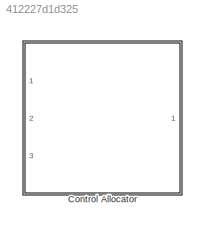
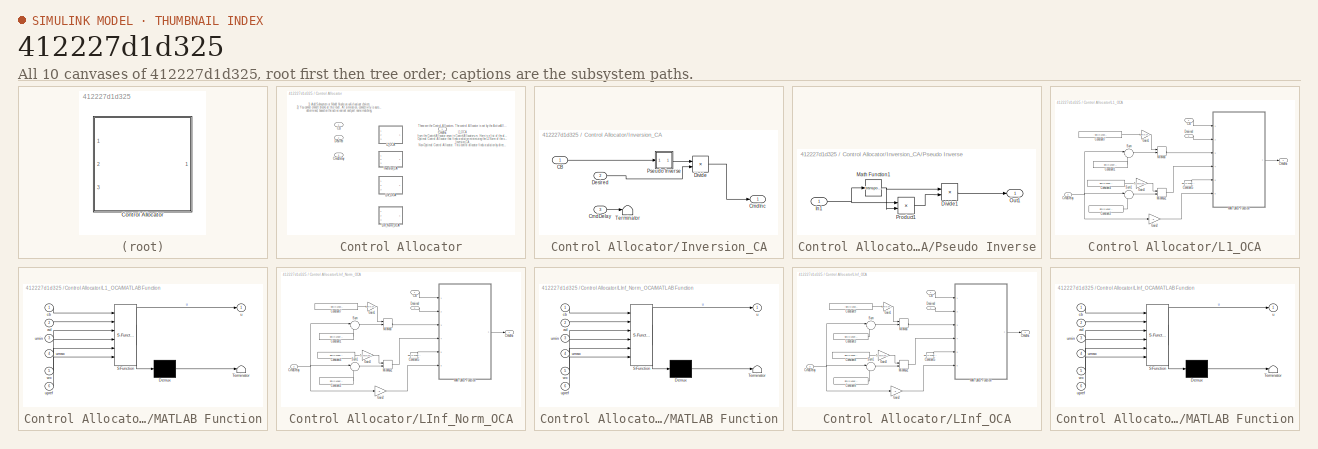
[diagram: thumbnail index - all 10 canvases of the model, root first then tree order]
MODEL slx_412227d1d325
KIND library
CONFIG AbsTol = auto
CONFIG FixedStep = auto
CONFIG MaxStep = auto
CONFIG MinStep = auto
CONFIG RelTol = 1e-3
CONFIG SampleTimeConstraint = Unconstrained
CONFIG Solver = VariableStepAuto
CONFIG SolverMode = Auto
CONFIG SolverName = VariableStepAuto
CONFIG StartTime = 0.0
CONFIG StopTime = 10.0
BLOCK [SubSystem] Control Allocator
  Ports = [3, 1]
  RequestExecContextInheritance = off
  Variant = on
BLOCK [Inport] Control Allocator/CB
  IconDisplay = Port number
BLOCK [Inport] Control Allocator/CmdDelay
  IconDisplay = Port number
  Port = 3
BLOCK [Outport] Control Allocator/CmdInc
  IconDisplay = Port number
BLOCK [Inport] Control Allocator/Desired
  IconDisplay = Port number
  Port = 2
BLOCK [SubSystem] Control Allocator/Inversion_CA
  Ports = [3, 1]
  RequestExecContextInheritance = off
  Variant = off
  VariantControl = ActiveAllocator==ControlAllocators.Inversion_CA
BLOCK [Inport] Control Allocator/Inversion_CA/CB
  IconDisplay = Port number
BLOCK [Inport] Control Allocator/Inversion_CA/CmdDelay
  IconDisplay = Port number
  Port = 3
BLOCK [Outport] Control Allocator/Inversion_CA/CmdInc
  IconDisplay = Port number
BLOCK [Inport] Control Allocator/Inversion_CA/Desired
  IconDisplay = Port number
  Port = 2
BLOCK [Product] Control Allocator/Inversion_CA/Divide
  InputSameDT = off
  Multiplication = Matrix(*)
  OutDataTypeStr = Inherit: Inherit via internal rule
  Ports = [2, 1]
  RndMeth = Floor
  SaturateOnIntegerOverflow = off
BLOCK [SubSystem] Control Allocator/Inversion_CA/Pseudo Inverse
  Ports = [1, 1]
  RequestExecContextInheritance = off
  Variant = off
BLOCK [Product] Control Allocator/Inversion_CA/Pseudo Inverse/Divide1
  InputSameDT = off
  Inputs = */
  Multiplication = Matrix(*)
  OutDataTypeStr = Inherit: Inherit via internal rule
  Ports = [2, 1]
  RndMeth = Floor
  SaturateOnIntegerOverflow = off
BLOCK [Inport] Control Allocator/Inversion_CA/Pseudo Inverse/In1
  IconDisplay = Port number
BLOCK [Math] Control Allocator/Inversion_CA/Pseudo Inverse/Math Function1
  Operator = transpose
  Ports = [1, 1]
BLOCK [Outport] Control Allocator/Inversion_CA/Pseudo Inverse/Out1
  IconDisplay = Port number
BLOCK [Product] Control Allocator/Inversion_CA/Pseudo Inverse/Product1
  InputSameDT = off
  Multiplication = Matrix(*)
  OutDataTypeStr = Inherit: Inherit via internal rule
  Ports = [2, 1]
  RndMeth = Floor
  SaturateOnIntegerOverflow = off
BLOCK [Terminator] Control Allocator/Inversion_CA/Terminator
BLOCK [SubSystem] Control Allocator/L1_OCA
  Ports = [3, 1]
  RequestExecContextInheritance = off
  Variant = off
  VariantControl = ActiveAllocator==ControlAllocators.L1_OCA
BLOCK [Inport] Control Allocator/L1_OCA/CB
  IconDisplay = Port number
BLOCK [Inport] Control Allocator/L1_OCA/CmdDelay
  IconDisplay = Port number
  Port = 3
BLOCK [Outport] Control Allocator/L1_OCA/CmdInc
  IconDisplay = Port number
BLOCK [Constant] Control Allocator/L1_OCA/Constant1
  Value = SimIn.Mixer.PosLim_lo
BLOCK [Constant] Control Allocator/L1_OCA/Constant2
  Value = SimIn.Mixer.PosLim_hi
BLOCK [Constant] Control Allocator/L1_OCA/Constant4
  Value = SimIn.Mixer.RateLim
BLOCK [Constant] Control Allocator/L1_OCA/Constant5
  Value = SimIn.Mixer.WeightC
BLOCK [Constant] Control Allocator/L1_OCA/Constant7
  Value = -SimIn.Mixer.RateLim
BLOCK [Inport] Control Allocator/L1_OCA/Desired
  IconDisplay = Port number
  Port = 2
BLOCK [Gain] Control Allocator/L1_OCA/Gain1
  Gain = SimIn.Modeling.SampleTime
  OutDataTypeStr = Inherit: Inherit via internal rule
  ParamDataTypeStr = Inherit: Inherit via internal rule
  SaturateOnIntegerOverflow = off
BLOCK [Gain] Control Allocator/L1_OCA/Gain2
  Gain = -1
  OutDataTypeStr = Inherit: Inherit via internal rule
  ParamDataTypeStr = Inherit: Inherit via internal rule
  SaturateOnIntegerOverflow = off
BLOCK [Gain] Control Allocator/L1_OCA/Gain3
  Gain = SimIn.Modeling.SampleTime
  OutDataTypeStr = Inherit: Inherit via internal rule
  ParamDataTypeStr = Inherit: Inherit via internal rule
  SaturateOnIntegerOverflow = off
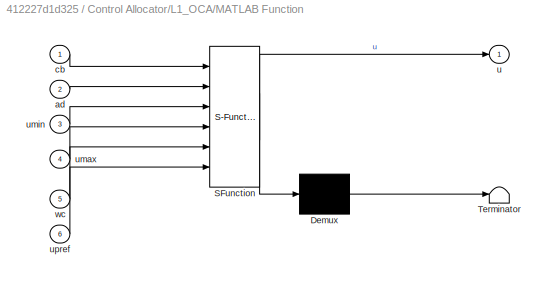
BLOCK [SubSystem] Control Allocator/L1_OCA/MATLAB Function
  ErrorFcn = Stateflow.Translate.translate
  PermitHierarchicalResolution = ExplicitOnly
  Ports = [6, 1]
  RequestExecContextInheritance = off
  SFBlockType = MATLAB Function
  TreatAsAtomicUnit = on
  Variant = off
BLOCK [Demux] Control Allocator/L1_OCA/MATLAB Function/ Demux 
  Outputs = 1
  Ports = [1, 1]
BLOCK [S-Function] Control Allocator/L1_OCA/MATLAB Function/ SFunction 
  EnableBusSupport = off
  FunctionName = sf_sfun
  PortCounts = [6 2]
  Ports = [6, 2]
  SFunctionDeploymentMode = off
  Tag = Stateflow S-Function ControlAllocator 4
BLOCK [Terminator] Control Allocator/L1_OCA/MATLAB Function/ Terminator 
BLOCK [Inport] Control Allocator/L1_OCA/MATLAB Function/ad
  IconDisplay = Port number
  Port = 2
BLOCK [Inport] Control Allocator/L1_OCA/MATLAB Function/cb
  IconDisplay = Port number
BLOCK [Outport] Control Allocator/L1_OCA/MATLAB Function/u
  IconDisplay = Port number
BLOCK [Inport] Control Allocator/L1_OCA/MATLAB Function/umax
  IconDisplay = Port number
  Port = 4
BLOCK [Inport] Control Allocator/L1_OCA/MATLAB Function/umin
  IconDisplay = Port number
  Port = 3
BLOCK [Inport] Control Allocator/L1_OCA/MATLAB Function/upref
  IconDisplay = Port number
  Port = 6
BLOCK [Inport] Control Allocator/L1_OCA/MATLAB Function/wc
  IconDisplay = Port number
  Port = 5
BLOCK [MinMax] Control Allocator/L1_OCA/MinMax
  Function = max
  InputSameDT = off
  Inputs = 2
  Ports = [2, 1]
  SaturateOnIntegerOverflow = off
BLOCK [MinMax] Control Allocator/L1_OCA/MinMax1
  InputSameDT = off
  Inputs = 2
  Ports = [2, 1]
  SaturateOnIntegerOverflow = off
BLOCK [Sum] Control Allocator/L1_OCA/Sum
  IconShape = round
  InputSameDT = off
  Inputs = |-+
  OutDataTypeStr = Inherit: Inherit via internal rule
  Ports = [2, 1]
  SaturateOnIntegerOverflow = off
BLOCK [Sum] Control Allocator/L1_OCA/Sum1
  IconShape = round
  InputSameDT = off
  Inputs = |-+
  OutDataTypeStr = Inherit: Inherit via internal rule
  Ports = [2, 1]
  SaturateOnIntegerOverflow = off
BLOCK [SubSystem] Control Allocator/LInf_Norm_OCA
  Ports = [3, 1]
  RequestExecContextInheritance = off
  Variant = off
  VariantControl = ActiveAllocator==ControlAllocators.LInf_Norm_OCA
BLOCK [Inport] Control Allocator/LInf_Norm_OCA/CB
  IconDisplay = Port number
BLOCK [Inport] Control Allocator/LInf_Norm_OCA/CmdDelay
  IconDisplay = Port number
  Port = 3
BLOCK [Outport] Control Allocator/LInf_Norm_OCA/CmdInc
  IconDisplay = Port number
BLOCK [Constant] Control Allocator/LInf_Norm_OCA/Constant1
  Value = SimIn.Mixer.PosLim_lo
BLOCK [Constant] Control Allocator/LInf_Norm_OCA/Constant2
  Value = SimIn.Mixer.PosLim_hi
BLOCK [Constant] Control Allocator/LInf_Norm_OCA/Constant4
  Value = SimIn.Mixer.RateLim
BLOCK [Constant] Control Allocator/LInf_Norm_OCA/Constant5
  Value = SimIn.Mixer.WeightC
BLOCK [Constant] Control Allocator/LInf_Norm_OCA/Constant7
  Value = -SimIn.Mixer.RateLim
BLOCK [Inport] Control Allocator/LInf_Norm_OCA/Desired
  IconDisplay = Port number
  Port = 2
BLOCK [Gain] Control Allocator/LInf_Norm_OCA/Gain1
  Gain = SimIn.Modeling.SampleTime
  OutDataTypeStr = Inherit: Inherit via internal rule
  ParamDataTypeStr = Inherit: Inherit via internal rule
  SaturateOnIntegerOverflow = off
BLOCK [Gain] Control Allocator/LInf_Norm_OCA/Gain2
  Gain = -1
  OutDataTypeStr = Inherit: Inherit via internal rule
  ParamDataTypeStr = Inherit: Inherit via internal rule
  SaturateOnIntegerOverflow = off
BLOCK [Gain] Control Allocator/LInf_Norm_OCA/Gain3
  Gain = SimIn.Modeling.SampleTime
  OutDataTypeStr = Inherit: Inherit via internal rule
  ParamDataTypeStr = Inherit: Inherit via internal rule
  SaturateOnIntegerOverflow = off
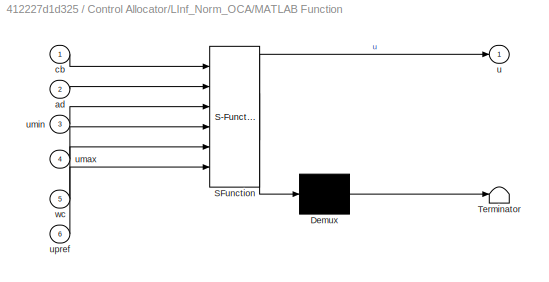
BLOCK [SubSystem] Control Allocator/LInf_Norm_OCA/MATLAB Function
  ErrorFcn = Stateflow.Translate.translate
  PermitHierarchicalResolution = ExplicitOnly
  Ports = [6, 1]
  RequestExecContextInheritance = off
  SFBlockType = MATLAB Function
  TreatAsAtomicUnit = on
  Variant = off
BLOCK [Demux] Control Allocator/LInf_Norm_OCA/MATLAB Function/ Demux 
  Outputs = 1
  Ports = [1, 1]
BLOCK [S-Function] Control Allocator/LInf_Norm_OCA/MATLAB Function/ SFunction 
  EnableBusSupport = off
  FunctionName = sf_sfun
  PortCounts = [6 2]
  Ports = [6, 2]
  SFunctionDeploymentMode = off
  Tag = Stateflow S-Function ControlAllocator 8
BLOCK [Terminator] Control Allocator/LInf_Norm_OCA/MATLAB Function/ Terminator 
BLOCK [Inport] Control Allocator/LInf_Norm_OCA/MATLAB Function/ad
  IconDisplay = Port number
  Port = 2
BLOCK [Inport] Control Allocator/LInf_Norm_OCA/MATLAB Function/cb
  IconDisplay = Port number
BLOCK [Outport] Control Allocator/LInf_Norm_OCA/MATLAB Function/u
  IconDisplay = Port number
BLOCK [Inport] Control Allocator/LInf_Norm_OCA/MATLAB Function/umax
  IconDisplay = Port number
  Port = 4
BLOCK [Inport] Control Allocator/LInf_Norm_OCA/MATLAB Function/umin
  IconDisplay = Port number
  Port = 3
BLOCK [Inport] Control Allocator/LInf_Norm_OCA/MATLAB Function/upref
  IconDisplay = Port number
  Port = 6
BLOCK [Inport] Control Allocator/LInf_Norm_OCA/MATLAB Function/wc
  IconDisplay = Port number
  Port = 5
BLOCK [MinMax] Control Allocator/LInf_Norm_OCA/MinMax
  Function = max
  InputSameDT = off
  Inputs = 2
  Ports = [2, 1]
  SaturateOnIntegerOverflow = off
BLOCK [MinMax] Control Allocator/LInf_Norm_OCA/MinMax1
  InputSameDT = off
  Inputs = 2
  Ports = [2, 1]
  SaturateOnIntegerOverflow = off
BLOCK [Sum] Control Allocator/LInf_Norm_OCA/Sum
  IconShape = round
  InputSameDT = off
  Inputs = |-+
  OutDataTypeStr = Inherit: Inherit via internal rule
  Ports = [2, 1]
  SaturateOnIntegerOverflow = off
BLOCK [Sum] Control Allocator/LInf_Norm_OCA/Sum1
  IconShape = round
  InputSameDT = off
  Inputs = |-+
  OutDataTypeStr = Inherit: Inherit via internal rule
  Ports = [2, 1]
  SaturateOnIntegerOverflow = off
BLOCK [SubSystem] Control Allocator/LInf_OCA
  Ports = [3, 1]
  RequestExecContextInheritance = off
  Variant = off
  VariantControl = ActiveAllocator==ControlAllocators.LInf_OCA
BLOCK [Inport] Control Allocator/LInf_OCA/CB
  IconDisplay = Port number
BLOCK [Inport] Control Allocator/LInf_OCA/CmdDelay
  IconDisplay = Port number
  Port = 3
BLOCK [Outport] Control Allocator/LInf_OCA/CmdInc
  IconDisplay = Port number
BLOCK [Constant] Control Allocator/LInf_OCA/Constant3
  Value = SimIn.Mixer.PosLim_lo
BLOCK [Constant] Control Allocator/LInf_OCA/Constant5
  Value = SimIn.Mixer.WeightC
BLOCK [Constant] Control Allocator/LInf_OCA/Constant6
  Value = SimIn.Mixer.PosLim_hi
BLOCK [Constant] Control Allocator/LInf_OCA/Constant8
  Value = SimIn.Mixer.RateLim
BLOCK [Constant] Control Allocator/LInf_OCA/Constant9
  Value = -SimIn.Mixer.RateLim
BLOCK [Inport] Control Allocator/LInf_OCA/Desired
  IconDisplay = Port number
  Port = 2
BLOCK [Gain] Control Allocator/LInf_OCA/Gain1
  Gain = SimIn.Modeling.SampleTime
  OutDataTypeStr = Inherit: Inherit via internal rule
  ParamDataTypeStr = Inherit: Inherit via internal rule
  SaturateOnIntegerOverflow = off
BLOCK [Gain] Control Allocator/LInf_OCA/Gain2
  Gain = -1
  OutDataTypeStr = Inherit: Inherit via internal rule
  ParamDataTypeStr = Inherit: Inherit via internal rule
  SaturateOnIntegerOverflow = off
BLOCK [Gain] Control Allocator/LInf_OCA/Gain3
  Gain = SimIn.Modeling.SampleTime
  OutDataTypeStr = Inherit: Inherit via internal rule
  ParamDataTypeStr = Inherit: Inherit via internal rule
  SaturateOnIntegerOverflow = off
BLOCK [SubSystem] Control Allocator/LInf_OCA/MATLAB Function
  ErrorFcn = Stateflow.Translate.translate
  PermitHierarchicalResolution = ExplicitOnly
  Ports = [6, 1]
  RequestExecContextInheritance = off
  SFBlockType = MATLAB Function
  TreatAsAtomicUnit = on
  Variant = off
BLOCK [Demux] Control Allocator/LInf_OCA/MATLAB Function/ Demux 
  Outputs = 1
  Ports = [1, 1]
BLOCK [S-Function] Control Allocator/LInf_OCA/MATLAB Function/ SFunction 
  EnableBusSupport = off
  FunctionName = sf_sfun
  PortCounts = [6 2]
  Ports = [6, 2]
  SFunctionDeploymentMode = off
  Tag = Stateflow S-Function ControlAllocator 3
BLOCK [Terminator] Control Allocator/LInf_OCA/MATLAB Function/ Terminator 
BLOCK [Inport] Control Allocator/LInf_OCA/MATLAB Function/ad
  IconDisplay = Port number
  Port = 2
BLOCK [Inport] Control Allocator/LInf_OCA/MATLAB Function/cb
  IconDisplay = Port number
BLOCK [Outport] Control Allocator/LInf_OCA/MATLAB Function/u
  IconDisplay = Port number
BLOCK [Inport] Control Allocator/LInf_OCA/MATLAB Function/umax
  IconDisplay = Port number
  Port = 4
BLOCK [Inport] Control Allocator/LInf_OCA/MATLAB Function/umin
  IconDisplay = Port number
  Port = 3
BLOCK [Inport] Control Allocator/LInf_OCA/MATLAB Function/upref
  IconDisplay = Port number
  Port = 6
BLOCK [Inport] Control Allocator/LInf_OCA/MATLAB Function/wc
  IconDisplay = Port number
  Port = 5
BLOCK [MinMax] Control Allocator/LInf_OCA/MinMax
  Function = max
  InputSameDT = off
  Inputs = 2
  Ports = [2, 1]
  SaturateOnIntegerOverflow = off
BLOCK [MinMax] Control Allocator/LInf_OCA/MinMax1
  InputSameDT = off
  Inputs = 2
  Ports = [2, 1]
  SaturateOnIntegerOverflow = off
BLOCK [Sum] Control Allocator/LInf_OCA/Sum
  IconShape = round
  InputSameDT = off
  Inputs = |-+
  OutDataTypeStr = Inherit: Inherit via internal rule
  Ports = [2, 1]
  SaturateOnIntegerOverflow = off
BLOCK [Sum] Control Allocator/LInf_OCA/Sum1
  IconShape = round
  InputSameDT = off
  Inputs = |-+
  OutDataTypeStr = Inherit: Inherit via internal rule
  Ports = [2, 1]
  SaturateOnIntegerOverflow = off
ANNOTATION Control Allocator: 1) Add Subsystem or Model blocks as valid variant choices. 2) You cannot connect blocks at this level. At simulation, connectivity is automatically determined, based on the active variant and port name matching.
ANNOTATION Control Allocator: These are the Control Allocators. The control Allocator is set by the ActiveAllocator variable from the ControlAllocator enum in ControlAllocators.m. Here is a list of the alloocators availible: L1_OCA Optimal Control Allocator that finds a solution minimizing the L1 Norm of the control deflection using the simplex method. This is the default Allocator. Inversion_CA Non-Optimal Control Allocator. ...<+456ch>
LINE Control Allocator/Inversion_CA/CB:1 -> Control Allocator/Inversion_CA/Pseudo Inverse:1
LINE Control Allocator/Inversion_CA/CmdDelay:1 -> Control Allocator/Inversion_CA/Terminator:1
LINE Control Allocator/Inversion_CA/Desired:1 -> Control Allocator/Inversion_CA/Divide:2
LINE Control Allocator/Inversion_CA/Divide:1 -> Control Allocator/Inversion_CA/CmdInc:1
LINE Control Allocator/Inversion_CA/Pseudo Inverse/Divide1:1 -> Control Allocator/Inversion_CA/Pseudo Inverse/Out1:1
NET Control Allocator/Inversion_CA/Pseudo Inverse/In1:1 -> Control Allocator/Inversion_CA/Pseudo Inverse/Math Function1:1, Control Allocator/Inversion_CA/Pseudo Inverse/Product1:1
NET Control Allocator/Inversion_CA/Pseudo Inverse/Math Function1:1 -> Control Allocator/Inversion_CA/Pseudo Inverse/Divide1:1, Control Allocator/Inversion_CA/Pseudo Inverse/Product1:2
LINE Control Allocator/Inversion_CA/Pseudo Inverse/Product1:1 -> Control Allocator/Inversion_CA/Pseudo Inverse/Divide1:2
LINE Control Allocator/Inversion_CA/Pseudo Inverse:1 -> Control Allocator/Inversion_CA/Divide:1
LINE Control Allocator/L1_OCA/CB:1 -> Control Allocator/L1_OCA/MATLAB Function:1
NET Control Allocator/L1_OCA/CmdDelay:1 -> Control Allocator/L1_OCA/Gain2:1, Control Allocator/L1_OCA/Sum1:1, Control Allocator/L1_OCA/Sum:1
LINE Control Allocator/L1_OCA/Constant1:1 -> Control Allocator/L1_OCA/Sum:2
LINE Control Allocator/L1_OCA/Constant2:1 -> Control Allocator/L1_OCA/Sum1:2
LINE Control Allocator/L1_OCA/Constant4:1 -> Control Allocator/L1_OCA/Gain3:1
LINE Control Allocator/L1_OCA/Constant5:1 -> Control Allocator/L1_OCA/MATLAB Function:5
LINE Control Allocator/L1_OCA/Constant7:1 -> Control Allocator/L1_OCA/Gain1:1
LINE Control Allocator/L1_OCA/Desired:1 -> Control Allocator/L1_OCA/MATLAB Function:2
LINE Control Allocator/L1_OCA/Gain1:1 -> Control Allocator/L1_OCA/MinMax:1
LINE Control Allocator/L1_OCA/Gain2:1 -> Control Allocator/L1_OCA/MATLAB Function:6
LINE Control Allocator/L1_OCA/Gain3:1 -> Control Allocator/L1_OCA/MinMax1:1
LINE Control Allocator/L1_OCA/MATLAB Function:1 -> Control Allocator/L1_OCA/CmdInc:1
LINE Control Allocator/L1_OCA/MinMax1:1 -> Control Allocator/L1_OCA/MATLAB Function:4
LINE Control Allocator/L1_OCA/MinMax:1 -> Control Allocator/L1_OCA/MATLAB Function:3
LINE Control Allocator/L1_OCA/Sum1:1 -> Control Allocator/L1_OCA/MinMax1:2
LINE Control Allocator/L1_OCA/Sum:1 -> Control Allocator/L1_OCA/MinMax:2
LINE Control Allocator/LInf_Norm_OCA/CB:1 -> Control Allocator/LInf_Norm_OCA/MATLAB Function:1
NET Control Allocator/LInf_Norm_OCA/CmdDelay:1 -> Control Allocator/LInf_Norm_OCA/Gain2:1, Control Allocator/LInf_Norm_OCA/Sum1:1, Control Allocator/LInf_Norm_OCA/Sum:1
LINE Control Allocator/LInf_Norm_OCA/Constant1:1 -> Control Allocator/LInf_Norm_OCA/Sum:2
LINE Control Allocator/LInf_Norm_OCA/Constant2:1 -> Control Allocator/LInf_Norm_OCA/Sum1:2
LINE Control Allocator/LInf_Norm_OCA/Constant4:1 -> Control Allocator/LInf_Norm_OCA/Gain3:1
LINE Control Allocator/LInf_Norm_OCA/Constant5:1 -> Control Allocator/LInf_Norm_OCA/MATLAB Function:5
LINE Control Allocator/LInf_Norm_OCA/Constant7:1 -> Control Allocator/LInf_Norm_OCA/Gain1:1
LINE Control Allocator/LInf_Norm_OCA/Desired:1 -> Control Allocator/LInf_Norm_OCA/MATLAB Function:2
LINE Control Allocator/LInf_Norm_OCA/Gain1:1 -> Control Allocator/LInf_Norm_OCA/MinMax:1
LINE Control Allocator/LInf_Norm_OCA/Gain2:1 -> Control Allocator/LInf_Norm_OCA/MATLAB Function:6
LINE Control Allocator/LInf_Norm_OCA/Gain3:1 -> Control Allocator/LInf_Norm_OCA/MinMax1:1
LINE Control Allocator/LInf_Norm_OCA/MATLAB Function:1 -> Control Allocator/LInf_Norm_OCA/CmdInc:1
LINE Control Allocator/LInf_Norm_OCA/MinMax1:1 -> Control Allocator/LInf_Norm_OCA/MATLAB Function:4
LINE Control Allocator/LInf_Norm_OCA/MinMax:1 -> Control Allocator/LInf_Norm_OCA/MATLAB Function:3
LINE Control Allocator/LInf_Norm_OCA/Sum1:1 -> Control Allocator/LInf_Norm_OCA/MinMax1:2
LINE Control Allocator/LInf_Norm_OCA/Sum:1 -> Control Allocator/LInf_Norm_OCA/MinMax:2
LINE Control Allocator/LInf_OCA/CB:1 -> Control Allocator/LInf_OCA/MATLAB Function:1
NET Control Allocator/LInf_OCA/CmdDelay:1 -> Control Allocator/LInf_OCA/Gain2:1, Control Allocator/LInf_OCA/Sum1:1, Control Allocator/LInf_OCA/Sum:1
LINE Control Allocator/LInf_OCA/Constant3:1 -> Control Allocator/LInf_OCA/Sum:2
LINE Control Allocator/LInf_OCA/Constant5:1 -> Control Allocator/LInf_OCA/MATLAB Function:5
LINE Control Allocator/LInf_OCA/Constant6:1 -> Control Allocator/LInf_OCA/Sum1:2
LINE Control Allocator/LInf_OCA/Constant8:1 -> Control Allocator/LInf_OCA/Gain3:1
LINE Control Allocator/LInf_OCA/Constant9:1 -> Control Allocator/LInf_OCA/Gain1:1
LINE Control Allocator/LInf_OCA/Desired:1 -> Control Allocator/LInf_OCA/MATLAB Function:2
LINE Control Allocator/LInf_OCA/Gain1:1 -> Control Allocator/LInf_OCA/MinMax:1
LINE Control Allocator/LInf_OCA/Gain2:1 -> Control Allocator/LInf_OCA/MATLAB Function:6
LINE Control Allocator/LInf_OCA/Gain3:1 -> Control Allocator/LInf_OCA/MinMax1:1
LINE Control Allocator/LInf_OCA/MATLAB Function:1 -> Control Allocator/LInf_OCA/CmdInc:1
LINE Control Allocator/LInf_OCA/MinMax1:1 -> Control Allocator/LInf_OCA/MATLAB Function:4
LINE Control Allocator/LInf_OCA/MinMax:1 -> Control Allocator/LInf_OCA/MATLAB Function:3
LINE Control Allocator/LInf_OCA/Sum1:1 -> Control Allocator/LInf_OCA/MinMax1:2
LINE Control Allocator/LInf_OCA/Sum:1 -> Control Allocator/LInf_OCA/MinMax:2
note: NET lines group one-source signal fan-out (src -> all destinations, sorted); 1:1 wires keep LINE
CHART Control Allocator/LInf_OCA/MATLAB Function states=1 transitions=1
  STATE_LABEL 'eML_blk_kernel()'
  STATE_LABEL 'SCRIPT:\nfunction u = runOCA(cb,ad,umin,umax,wc,upref)\n%#codegen\n\n[~, u] = LInf_OCA(cb,ad,umin,umax,wc,upref); % euinfx, euminx2'
CHART Control Allocator/L1_OCA/MATLAB Function states=1 transitions=1
  STATE_LABEL 'eML_blk_kernel()'
  STATE_LABEL 'SCRIPT:\nfunction u = runOCA(cb,ad,umin,umax,wc,upref)\n%#codegen\n\n[~, u] = L1_OCA(cb,ad,umin,umax,wc,upref);\n'
CHART Control Allocator/LInf_Norm_OCA/MATLAB Function states=1 transitions=1
  STATE_LABEL 'eML_blk_kernel()'
  STATE_LABEL 'SCRIPT:\nfunction u = runOCA(cb,ad,umin,umax,wc,upref)\n%#codegen\n\n[~, u] = LInf_Norm_OCA(cb,ad,umin,umax,wc,upref); % euinfx, euminx2'
